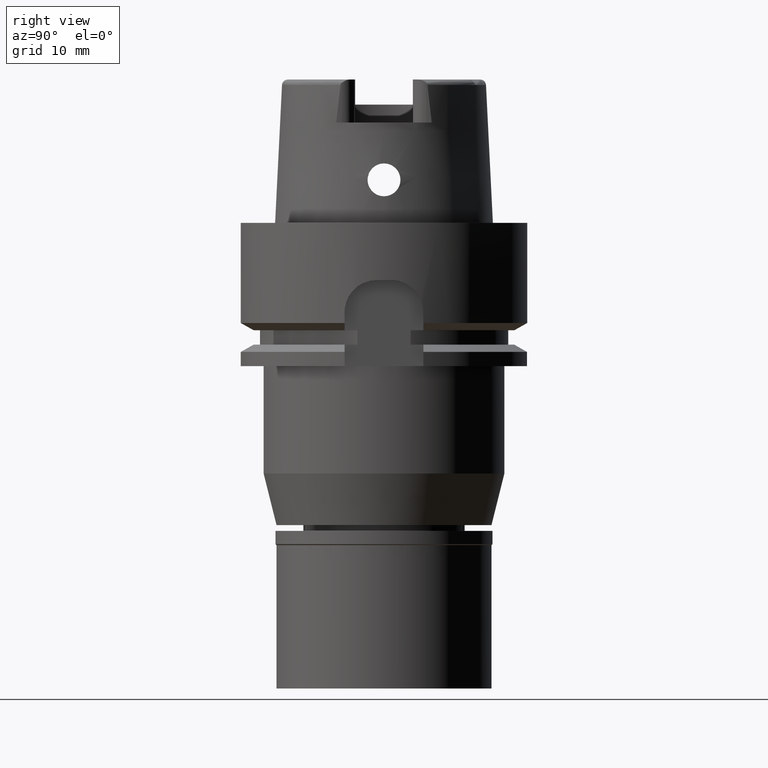
[diagram: clean part render]
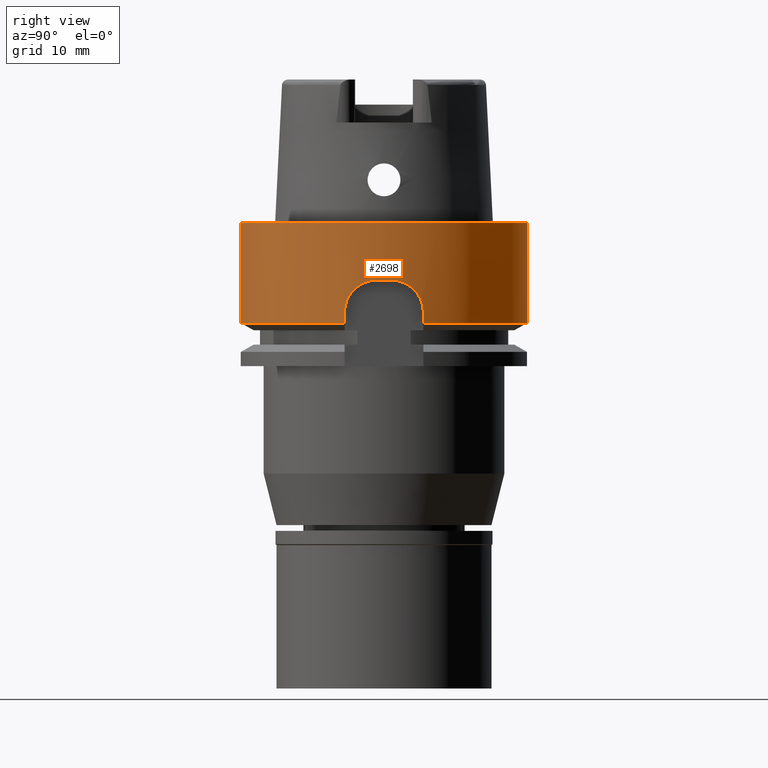
[diagram: same view with one face highlighted and labeled with its STEP entity id]
A machine part, right view. The second image highlights one B-rep face of the part: STEP entity #2698.
In plain terms, the highlighted cylindrical surface (partial cylindrical patch) has radius 20 mm, axis along (0, 0, 1).
Its self-contained STEP definition (entity closure, byte-faithful):
#40 = CARTESIAN_POINT ( 'NONE',  ( 19.79878724721153560, -2.832227450064291219, -8.387867633533593548 ) ) ;
#96 = CARTESIAN_POINT ( 'NONE',  ( 19.69006013269959965, -3.507378425137720246, -8.763260683032145337 ) ) ;
#122 = EDGE_LOOP ( 'NONE', ( #1818, #3749, #2486, #417, #3315, #3403, #2132, #4902, #2790, #492 ) ) ;
#135 = CARTESIAN_POINT ( 'NONE',  ( 19.55092274637197747, 4.214494902092598139, -9.350849150091741890 ) ) ;
#162 = CARTESIAN_POINT ( 'NONE',  ( 0.0000000000000000000, 20.00000000000000000, 6.631732200427999741E-14 ) ) ;
#176 = CARTESIAN_POINT ( 'NONE',  ( 19.32339585466795739, -5.158492913143184921, -10.78041865482917672 ) ) ;
#193 = AXIS2_PLACEMENT_3D ( 'NONE', #2007, #5273, #4393 ) ;
#198 = CIRCLE ( 'NONE', #5027, 20.00000000000000000 ) ;
#212 = CARTESIAN_POINT ( 'NONE',  ( 19.23659385547791700, 5.474636443443967160, -11.94125865178654600 ) ) ;
#235 = CARTESIAN_POINT ( 'NONE',  ( 19.30832678473931452, 5.214864014488599153, -10.92283349828730366 ) ) ;
#277 = CARTESIAN_POINT ( 'NONE',  ( 19.22888452303000051, -5.500000000000000000, -11.94492879378589478 ) ) ;
#417 = ORIENTED_EDGE ( 'NONE', *, *, #719, .T. ) ;
#455 = CARTESIAN_POINT ( 'NONE',  ( 19.90130047639330968, -1.985477846419295478, -8.106792409467139748 ) ) ;
#467 = DIRECTION ( 'NONE',  ( 0.0000000000000000000, 0.0000000000000000000, 1.000000000000000000 ) ) ;
#481 = CARTESIAN_POINT ( 'NONE',  ( 19.82370695197547761, -2.649185133243415535, -8.313013301154892787 ) ) ;
#492 = ORIENTED_EDGE ( 'NONE', *, *, #1518, .F. ) ;
#503 = CARTESIAN_POINT ( 'NONE',  ( 19.57603633007931876, -4.096177702047029356, -9.234171355918142865 ) ) ;
#542 = CARTESIAN_POINT ( 'NONE',  ( 19.31475624754254383, 5.190847333183511658, -10.86066003661422741 ) ) ;
#560 = CARTESIAN_POINT ( 'NONE',  ( 19.64440606333977968, -3.753015825151927221, -8.939609798719668987 ) ) ;
#568 = CARTESIAN_POINT ( 'NONE',  ( 19.26935851838152303, 5.358219115057545778, -11.36942689071893575 ) ) ;
#595 = CARTESIAN_POINT ( 'NONE',  ( 19.43284809395968082, 4.733461550816890018, -9.983469680692119042 ) ) ;
#625 = CARTESIAN_POINT ( 'NONE',  ( 19.66628108874669678, 3.637937545236583858, -8.851332620206676438 ) ) ;
#643 = DIRECTION ( 'NONE',  ( 0.0000000000000000000, 4.549132851063000272E-14, -1.000000000000000000 ) ) ;
#655 = CARTESIAN_POINT ( 'NONE',  ( 19.34392790666297302, 5.081397619008951594, -10.59153971317683229 ) ) ;
#665 = CARTESIAN_POINT ( 'NONE',  ( 19.33808127859245829, -5.103432223520028899, -10.65263608817537566 ) ) ;
#719 = EDGE_CURVE ( 'NONE', #5053, #4528, #3960, .T. ) ;
#749 = CARTESIAN_POINT ( 'NONE',  ( 0.0000000000000000000, -20.00000000000000000, 6.631732200427999741E-14 ) ) ;
#871 = CARTESIAN_POINT ( 'NONE',  ( 0.0000000000000000000, 0.0000000000000000000, -8.000000000000000000 ) ) ;
#907 = EDGE_CURVE ( 'NONE', #3779, #1319, #4050, .T. ) ;
#918 = CARTESIAN_POINT ( 'NONE',  ( 19.69235738726314366, -3.494442703318451748, -8.754635223988966430 ) ) ;
#938 = CARTESIAN_POINT ( 'NONE',  ( 19.73879065015405132, -3.222290560679334170, -8.586223259452298251 ) ) ;
#975 = CARTESIAN_POINT ( 'NONE',  ( 19.79308005088202549, 2.869920567922407795, -8.406735843555335208 ) ) ;
#1022 = CARTESIAN_POINT ( 'NONE',  ( 19.28670451638931027, 5.294861289725180775, -11.15473651109131836 ) ) ;
#1072 = CARTESIAN_POINT ( 'NONE',  ( 19.34811643790262892, -5.065740602206195042, -10.57039094671742774 ) ) ;
#1080 = CARTESIAN_POINT ( 'NONE',  ( 19.71061661248892349, 3.394884962790654104, -8.687387489406258823 ) ) ;
#1092 = LINE ( 'NONE', #749, #5267 ) ;
#1111 = EDGE_CURVE ( 'NONE', #5131, #4973, #198, .T. ) ;
#1113 = AXIS2_PLACEMENT_3D ( 'NONE', #871, #467, #5028 ) ;
#1175 = CARTESIAN_POINT ( 'NONE',  ( 0.0000000000000000000, 20.00000000000000000, 6.631732200427999741E-14 ) ) ;
#1216 = CARTESIAN_POINT ( 'NONE',  ( 0.0000000000000000000, -20.00000000000000000, -13.97927405783999966 ) ) ;
#1236 = AXIS2_PLACEMENT_3D ( 'NONE', #1401, #2239, #4270 ) ;
#1290 = CARTESIAN_POINT ( 'NONE',  ( 19.50217921961081657, -4.442594003674827263, -9.578651589216319095 ) ) ;
#1319 = VERTEX_POINT ( 'NONE', #3133 ) ;
#1321 = CARTESIAN_POINT ( 'NONE',  ( 19.69466798792323203, -3.481402031430713251, -8.745976627357693545 ) ) ;
#1353 = CARTESIAN_POINT ( 'NONE',  ( 19.69332140797661523, -3.489007400818764815, -8.751019594729577022 ) ) ;
#1377 = CARTESIAN_POINT ( 'NONE',  ( 19.78036261488093572, -2.958436143419902464, -8.445803887146951183 ) ) ;
#1390 = CARTESIAN_POINT ( 'NONE',  ( 19.32043472801015582, 5.169572748139446894, -10.80746168714229505 ) ) ;
#1401 = CARTESIAN_POINT ( 'NONE',  ( 0.0000000000000000000, 0.0000000000000000000, -62.21499999999999631 ) ) ;
#1409 = CARTESIAN_POINT ( 'NONE',  ( 19.55831082386052699, -4.180059027272812422, -9.316097855246940895 ) ) ;
#1422 = CARTESIAN_POINT ( 'NONE',  ( 19.37460722633391441, 4.968141091475810178, -10.35745565370592836 ) ) ;
#1471 = CARTESIAN_POINT ( 'NONE',  ( 19.80744021060116822, 2.768533228831426829, -8.361899853705059726 ) ) ;
#1490 = CARTESIAN_POINT ( 'NONE',  ( 19.32361526154587494, -5.157668876975060712, -10.77843043010601320 ) ) ;
#1518 = EDGE_CURVE ( 'NONE', #3374, #3642, #5330, .T. ) ;
#1721 = CARTESIAN_POINT ( 'NONE',  ( 19.69198617144260055, -3.496533464391019308, -8.756028756602644236 ) ) ;
#1747 = CARTESIAN_POINT ( 'NONE',  ( 19.81613325514287283, -2.705294497714132884, -8.335622991192057185 ) ) ;
#1781 = CARTESIAN_POINT ( 'NONE',  ( 19.45475018713548110, -4.645026843471501188, -9.844581254108996760 ) ) ;
#1794 = EDGE_CURVE ( 'NONE', #3374, #3788, #2870, .T. ) ;
#1808 = CARTESIAN_POINT ( 'NONE',  ( 19.63067666584892379, -3.824795347880348029, -8.995411347576128591 ) ) ;
#1816 = CARTESIAN_POINT ( 'NONE',  ( 19.29610026531020495, 5.260308519025040042, -11.04748964018862623 ) ) ;
#1818 = ORIENTED_EDGE ( 'NONE', *, *, #1794, .T. ) ;
#1830 = CARTESIAN_POINT ( 'NONE',  ( 19.86146910055553505, -2.348871068697889974, -8.206248360020595101 ) ) ;
#1897 = EDGE_CURVE ( 'NONE', #3094, #3788, #4685, .T. ) ;
#1921 = CARTESIAN_POINT ( 'NONE',  ( 19.54241320309545671, 4.253900727490661282, -9.391460062496923555 ) ) ;
#1949 = VECTOR ( 'NONE', #4055, 1000.000000000000000 ) ;
#2007 = CARTESIAN_POINT ( 'NONE',  ( 0.0000000000000000000, 0.0000000000000000000, -13.97927405783999966 ) ) ;
#2132 = ORIENTED_EDGE ( 'NONE', *, *, #2743, .T. ) ;
#2145 = DIRECTION ( 'NONE',  ( 0.0000000000000000000, 0.0000000000000000000, 1.000000000000000000 ) ) ;
#2160 = CARTESIAN_POINT ( 'NONE',  ( 19.74957719967458303, -3.155379730775461411, -8.549071909222615062 ) ) ;
#2176 = CARTESIAN_POINT ( 'NONE',  ( 19.22888452303000051, 5.500000000000000000, -12.50000000000000000 ) ) ;
#2185 = CARTESIAN_POINT ( 'NONE',  ( 19.56053743362927477, -4.169621998338312707, -9.305705765949358721 ) ) ;
#2194 = DIRECTION ( 'NONE',  ( 0.0000000000000000000, 0.0000000000000000000, -1.000000000000000000 ) ) ;
#2216 = CARTESIAN_POINT ( 'NONE',  ( 19.70267213807718676, -3.435873196086793868, -8.716183529089228443 ) ) ;
#2231 = CARTESIAN_POINT ( 'NONE',  ( 19.50178311368983231, 4.437984536111756917, -9.595210275235565689 ) ) ;
#2239 = DIRECTION ( 'NONE',  ( 0.0000000000000000000, 0.0000000000000000000, 1.000000000000000000 ) ) ;
#2270 = CARTESIAN_POINT ( 'NONE',  ( 19.35532325930061859, -5.038565037843082628, -10.51399933868640169 ) ) ;
#2279 = CARTESIAN_POINT ( 'NONE',  ( 19.59903263455975164, 3.985266675274310888, -9.129532234784083045 ) ) ;
#2310 = CARTESIAN_POINT ( 'NONE',  ( 19.48953007572735174, 4.491951112715720562, -9.660445326736478933 ) ) ;
#2335 = CARTESIAN_POINT ( 'NONE',  ( 19.76304889700243805, 3.072041751352130312, -8.504730640387490936 ) ) ;
#2347 = CARTESIAN_POINT ( 'NONE',  ( 19.32433041969878573, -5.154983158803780441, -10.77195855819109305 ) ) ;
#2388 = CARTESIAN_POINT ( 'NONE',  ( 19.22888438502999975, 5.500000482452001016, -13.97927001498999822 ) ) ;
#2486 = ORIENTED_EDGE ( 'NONE', *, *, #3690, .F. ) ;
#2529 = CARTESIAN_POINT ( 'NONE',  ( 19.81758746035329466, -2.694603807300659071, -8.331257517396434054 ) ) ;
#2533 = VECTOR ( 'NONE', #3985, 1000.000000000000000 ) ;
#2588 = CARTESIAN_POINT ( 'NONE',  ( 19.60625041659691803, -3.948170071301854822, -9.099824147826151233 ) ) ;
#2618 = DIRECTION ( 'NONE',  ( 0.0000000000000000000, 1.000000000000000000, 0.0000000000000000000 ) ) ;
#2652 = CARTESIAN_POINT ( 'NONE',  ( 19.31947859009914126, 5.173158578105930161, -10.81632238106601029 ) ) ;
#2698 = ADVANCED_FACE ( 'NONE', ( #4618 ), #3877, .T. ) ;
#2702 = CARTESIAN_POINT ( 'NONE',  ( 19.53068921811848213, 4.307772359050545674, -9.448422801151329153 ) ) ;
#2713 = CARTESIAN_POINT ( 'NONE',  ( 19.97498435543999662, -0.9999999999999000799, -8.000000000000000000 ) ) ;
#2733 = CARTESIAN_POINT ( 'NONE',  ( 19.97498435543999662, 0.9999999999999000799, -8.000000000000000000 ) ) ;
#2743 = EDGE_CURVE ( 'NONE', #4973, #3779, #1092, .T. ) ;
#2750 = DIRECTION ( 'NONE',  ( 0.0000000000000000000, -4.549132851063000272E-14, -1.000000000000000000 ) ) ;
#2790 = ORIENTED_EDGE ( 'NONE', *, *, #2839, .F. ) ;
#2839 = EDGE_CURVE ( 'NONE', #3642, #1319, #4406, .T. ) ;
#2870 = CIRCLE ( 'NONE', #1113, 20.00000000000000355 ) ;
#2960 = CARTESIAN_POINT ( 'NONE',  ( 0.0000000000000000000, 20.00000000000000000, -13.97927405783999966 ) ) ;
#2998 = CARTESIAN_POINT ( 'NONE',  ( 19.69274314928225422, -3.492268379235800690, -8.753188017609607741 ) ) ;
#3022 = CARTESIAN_POINT ( 'NONE',  ( 19.83212258908737624, -2.585548732820328599, -8.288267443670211065 ) ) ;
#3047 = CARTESIAN_POINT ( 'NONE',  ( 19.56252063931291829, -4.160305377280648642, -9.296470220448151522 ) ) ;
#3060 = CARTESIAN_POINT ( 'NONE',  ( 19.73203759431897453, 3.268435167273929132, -8.610740559863005572 ) ) ;
#3094 = VERTEX_POINT ( 'NONE', #2176 ) ;
#3110 = CARTESIAN_POINT ( 'NONE',  ( 19.80285706674571955, 2.801246046121341315, -8.376054429783765798 ) ) ;
#3133 = CARTESIAN_POINT ( 'NONE',  ( 19.22888452303000051, -5.499999999998999911, -13.97927405783999966 ) ) ;
#3254 = DIRECTION ( 'NONE',  ( 0.0000000000000000000, -1.000000000000000000, 0.0000000000000000000 ) ) ;
#3315 = ORIENTED_EDGE ( 'NONE', *, *, #4343, .F. ) ;
#3374 = VERTEX_POINT ( 'NONE', #2713 ) ;
#3386 = CARTESIAN_POINT ( 'NONE',  ( 19.56709572652440698, -4.138719417109928855, -9.275258457727440842 ) ) ;
#3403 = ORIENTED_EDGE ( 'NONE', *, *, #1111, .T. ) ;
#3413 = CARTESIAN_POINT ( 'NONE',  ( 19.96138875912106769, -1.271571823699121140, -7.999999999999994671 ) ) ;
#3447 = CARTESIAN_POINT ( 'NONE',  ( 19.39600780301140048, -4.882167647115922549, -10.21950844967565786 ) ) ;
#3470 = CARTESIAN_POINT ( 'NONE',  ( 19.55921030672427108, -4.175847404114266581, -9.311895150434978063 ) ) ;
#3480 = CARTESIAN_POINT ( 'NONE',  ( 19.22888452303000406, 5.500000000000001776, -12.22452500510574680 ) ) ;
#3495 = CARTESIAN_POINT ( 'NONE',  ( 19.72182370919562899, -3.324154676915199502, -8.646448266143638151 ) ) ;
#3549 = CARTESIAN_POINT ( 'NONE',  ( 19.26022506823637315, -5.395878610438084699, -11.35624131256338742 ) ) ;
#3608 = AXIS2_PLACEMENT_3D ( 'NONE', #5430, #2145, #3254 ) ;
#3642 = VERTEX_POINT ( 'NONE', #5352 ) ;
#3690 = EDGE_CURVE ( 'NONE', #5053, #3094, #5381, .T. ) ;
#3735 = CARTESIAN_POINT ( 'NONE',  ( 0.0000000000000000000, -20.00000000000000000, 1.278976924367999843E-13 ) ) ;
#3749 = ORIENTED_EDGE ( 'NONE', *, *, #1897, .F. ) ;
#3752 = CARTESIAN_POINT ( 'NONE',  ( 19.22888452303000051, 5.500000000000000000, -12.50000000000000000 ) ) ;
#3770 = VECTOR ( 'NONE', #2750, 1000.000000000000000 ) ;
#3779 = VERTEX_POINT ( 'NONE', #1216 ) ;
#3788 = VERTEX_POINT ( 'NONE', #4580 ) ;
#3816 = CARTESIAN_POINT ( 'NONE',  ( 19.22888438502999975, 5.500000482452001016, -13.97927001498999822 ) ) ;
#3852 = CARTESIAN_POINT ( 'NONE',  ( 19.88634664950558317, -2.130603934982997050, -8.141702171101080410 ) ) ;
#3877 = CYLINDRICAL_SURFACE ( 'NONE', #1236, 20.00000000000000000 ) ;
#3886 = CARTESIAN_POINT ( 'NONE',  ( 19.69735038645564984, -3.466205823342936920, -8.735957270023117616 ) ) ;
#3895 = CARTESIAN_POINT ( 'NONE',  ( 19.31805002971634266, 5.178514043761733632, -10.82961678951859064 ) ) ;
#3936 = CARTESIAN_POINT ( 'NONE',  ( 19.33325746713406801, -5.121509964615603927, -10.69317378612850433 ) ) ;
#3944 = CARTESIAN_POINT ( 'NONE',  ( 19.55296420876863905, 4.205003748714561063, -9.341196998747591351 ) ) ;
#3960 = CIRCLE ( 'NONE', #193, 20.00000000000000355 ) ;
#3973 = CARTESIAN_POINT ( 'NONE',  ( 19.89335567336028987, 2.144328412660093441, -8.101629999733814813 ) ) ;
#3985 = DIRECTION ( 'NONE',  ( 1.987810267856989673E-08, 6.949908147096961035E-08, -0.9999999999999973355 ) ) ;
#4009 = LINE ( 'NONE', #1175, #3770 ) ;
#4037 = CARTESIAN_POINT ( 'NONE',  ( 19.32540921218428664, -5.150933045007322519, -10.76223087731184158 ) ) ;
#4050 = CIRCLE ( 'NONE', #3608, 20.00000000000000000 ) ;
#4055 = DIRECTION ( 'NONE',  ( 9.328631746729403889E-08, -3.261419013439141648E-07, 0.9999999999999424904 ) ) ;
#4223 = CARTESIAN_POINT ( 'NONE',  ( 19.58334044020975284, -4.060857313224881082, -9.201193650365825150 ) ) ;
#4252 = CARTESIAN_POINT ( 'NONE',  ( 19.82004290327909857, -2.676439156273066722, -8.323919576289737776 ) ) ;
#4270 = DIRECTION ( 'NONE',  ( 0.0000000000000000000, 1.000000000000000000, 0.0000000000000000000 ) ) ;
#4276 = CARTESIAN_POINT ( 'NONE',  ( 19.59746964134362557, -3.991897465427140634, -9.138090891531039262 ) ) ;
#4303 = CARTESIAN_POINT ( 'NONE',  ( 19.71314345954702318, -3.375460247581976603, -8.677685215589191259 ) ) ;
#4318 = CARTESIAN_POINT ( 'NONE',  ( 19.52092653864102800, 4.352013082471141381, -9.497352243626890456 ) ) ;
#4336 = CARTESIAN_POINT ( 'NONE',  ( 19.84841862392588752, -2.458145788975252710, -8.241565015753693046 ) ) ;
#4343 = EDGE_CURVE ( 'NONE', #5131, #4528, #4009, .T. ) ;
#4360 = CARTESIAN_POINT ( 'NONE',  ( 19.32796878144351282, -5.141330893537838342, -10.73939453385291465 ) ) ;
#4391 = CARTESIAN_POINT ( 'NONE',  ( 19.57669236913637434, 4.094477243178500814, -9.229513695132245843 ) ) ;
#4393 = DIRECTION ( 'NONE',  ( 0.9614442261514726251, 0.2749999999999924727, 0.0000000000000000000 ) ) ;
#4406 = LINE ( 'NONE', #5286, #2533 ) ;
#4417 = CARTESIAN_POINT ( 'NONE',  ( 19.32104445936962378, 5.167284975351128296, -10.80183977555638819 ) ) ;
#4528 = VERTEX_POINT ( 'NONE', #2960 ) ;
#4580 = CARTESIAN_POINT ( 'NONE',  ( 19.97498435543999662, 0.9999999999999000799, -8.000000000000000000 ) ) ;
#4618 = FACE_OUTER_BOUND ( 'NONE', #122, .T. ) ;
#4685 = B_SPLINE_CURVE_WITH_KNOTS ( 'NONE', 3,
 ( #3752, #3480, #212, #5162, #568, #1022, #1816, #235, #542, #3895, #2652, #1390, #4417, #655, #1422, #595, #5241, #2310, #2231, #4318, #2702, #1921, #4801, #135, #3944, #4391, #2279, #4861, #625, #1080, #3060, #2335, #4751, #975, #3110, #1471, #3973, #5217, #2733 ),
 .UNSPECIFIED., .F., .F.,
 ( 4, 2, 2, 1, 1, 1, 1, 2, 2, 2, 2, 2, 1, 1, 2, 2, 2, 2, 2, 1, 2, 2, 4 ),
 ( 0.0000000000000000000, 0.1250000000000212053, 0.1875000000000321410, 0.2187500000000378864, 0.2343750000000404399, 0.2421875000000420219, 0.2460937500000426881, 0.2480468750000429656, 0.2500000000000432432, 0.3750000000000377476, 0.4375000000000350275, 0.4687500000000336398, 0.4843750000000330846, 0.4921875000000329181, 0.4960937500000328071, 0.5000000000000326406, 0.5625000000000289768, 0.6250000000000252021, 0.6875000000000213163, 0.7187500000000192069, 0.7343750000000182077, 0.7500000000000172085, 1.000000000000000000 ),
 .UNSPECIFIED. ) ;
#4686 = CARTESIAN_POINT ( 'NONE',  ( 19.94126833981952984, -1.553961944004287998, -8.024635853722060119 ) ) ;
#4717 = CARTESIAN_POINT ( 'NONE',  ( 0.0000000000000000000, 0.0000000000000000000, 1.278976924367999843E-13 ) ) ;
#4737 = CARTESIAN_POINT ( 'NONE',  ( 19.37849386906819760, -4.950198544447051319, -10.34065838136837456 ) ) ;
#4751 = CARTESIAN_POINT ( 'NONE',  ( 19.77827450582879010, 2.972167438692317809, -8.453965286057551154 ) ) ;
#4801 = CARTESIAN_POINT ( 'NONE',  ( 19.54750938071127209, 4.230322960330755500, -9.367087278104103021 ) ) ;
#4861 = CARTESIAN_POINT ( 'NONE',  ( 19.64372892379637392, 3.757534281537234122, -8.940804196871177112 ) ) ;
#4872 = CARTESIAN_POINT ( 'NONE',  ( 19.22888452303000051, -5.500000000000000000, -12.50000000000000000 ) ) ;
#4902 = ORIENTED_EDGE ( 'NONE', *, *, #907, .T. ) ;
#4973 = VERTEX_POINT ( 'NONE', #3735 ) ;
#5027 = AXIS2_PLACEMENT_3D ( 'NONE', #4717, #2194, #2618 ) ;
#5028 = DIRECTION ( 'NONE',  ( 0.9987492177719088371, -0.04999999999999998890, 0.0000000000000000000 ) ) ;
#5053 = VERTEX_POINT ( 'NONE', #3816 ) ;
#5129 = CARTESIAN_POINT ( 'NONE',  ( 19.97498435543999662, -0.9999999999999000799, -8.000000000000000000 ) ) ;
#5131 = VERTEX_POINT ( 'NONE', #162 ) ;
#5162 = CARTESIAN_POINT ( 'NONE',  ( 19.25972185282162741, 5.392789179757105700, -11.51281003803272007 ) ) ;
#5179 = CARTESIAN_POINT ( 'NONE',  ( 19.67792994978085019, -3.575208927560752592, -8.806736259749218476 ) ) ;
#5217 = CARTESIAN_POINT ( 'NONE',  ( 19.94751910472304957, 1.548617953246693935, -7.999999999999989342 ) ) ;
#5241 = CARTESIAN_POINT ( 'NONE',  ( 19.45429869785481714, 4.644412652361483929, -9.855112538593635563 ) ) ;
#5267 = VECTOR ( 'NONE', #643, 1000.000000000000000 ) ;
#5273 = DIRECTION ( 'NONE',  ( 0.0000000000000000000, 0.0000000000000000000, 1.000000000000000000 ) ) ;
#5286 = CARTESIAN_POINT ( 'NONE',  ( 19.22888452303000051, -5.500000000000000000, -12.50000000000000000 ) ) ;
#5330 = B_SPLINE_CURVE_WITH_KNOTS ( 'NONE', 3,
 ( #5129, #3413, #4686, #455, #3852, #1830, #4336, #3022, #481, #4252, #2529, #1747, #40, #1377, #2160, #938, #3495, #4303, #2216, #3886, #1321, #1353, #2998, #918, #1721, #96, #5179, #560, #1808, #2588, #4276, #4223, #503, #3386, #3047, #2185, #3470, #1409, #1290, #1781, #3447, #4737, #2270, #1072, #665, #3936, #4360, #4037, #2347, #1490, #176, #3549, #277, #4872 ),
 .UNSPECIFIED., .F., .F.,
 ( 4, 2, 2, 1, 1, 1, 2, 2, 2, 2, 1, 1, 1, 1, 1, 2, 2, 2, 2, 2, 1, 1, 1, 2, 2, 2, 2, 2, 1, 1, 1, 2, 2, 4 ),
 ( 0.0000000000000000000, 0.1250000000001735001, 0.1875000000002602363, 0.2187500000003036182, 0.2343750000003253231, 0.2421875000003362310, 0.2460937500003416156, 0.2500000000003469447, 0.3125000000004385936, 0.3437500000004844458, 0.3593750000005071499, 0.3671875000005185852, 0.3710937500005245249, 0.3730468750005276335, 0.3740234375005291878, 0.3745117187505301870, 0.3750000000005312417, 0.4375000000004721779, 0.4687500000004424794, 0.4843750000004276024, 0.4921875000004201639, 0.4960937500004166112, 0.4980468750004147793, 0.4990234375004137801, 0.5000000000004126699, 0.6250000000003079759, 0.6875000000002556844, 0.7187500000002297051, 0.7343750000002170486, 0.7421875000002111644, 0.7460937500002084999, 0.7480468750002071676, 0.7500000000002058353, 1.000000000000000000 ),
 .UNSPECIFIED. ) ;
#5352 = CARTESIAN_POINT ( 'NONE',  ( 19.22888452303000051, -5.500000000000000000, -12.50000000000000000 ) ) ;
#5381 = LINE ( 'NONE', #2388, #1949 ) ;
#5430 = CARTESIAN_POINT ( 'NONE',  ( 0.0000000000000000000, 0.0000000000000000000, -13.97927405783999966 ) ) ;